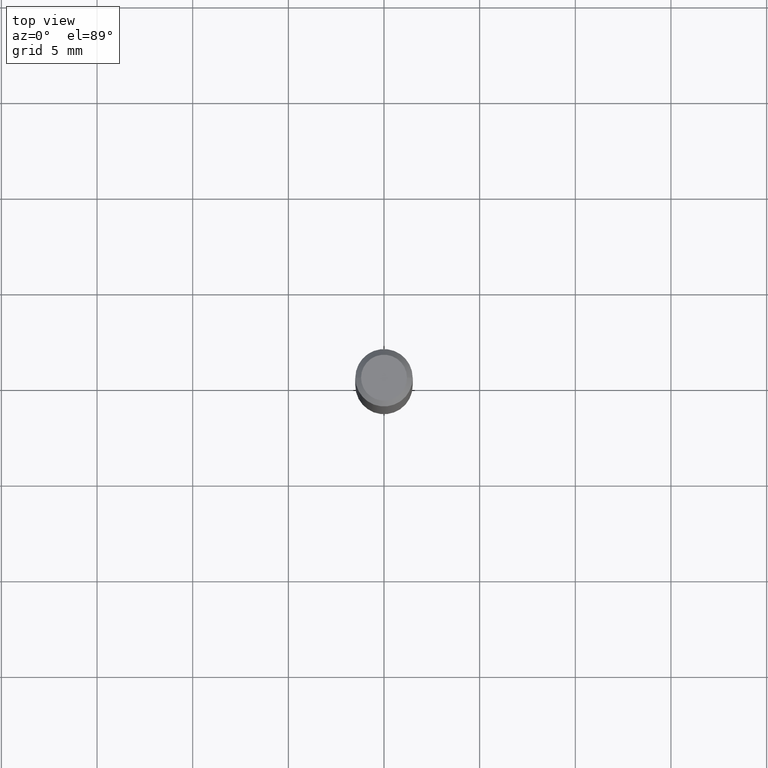
[diagram: clean part render]
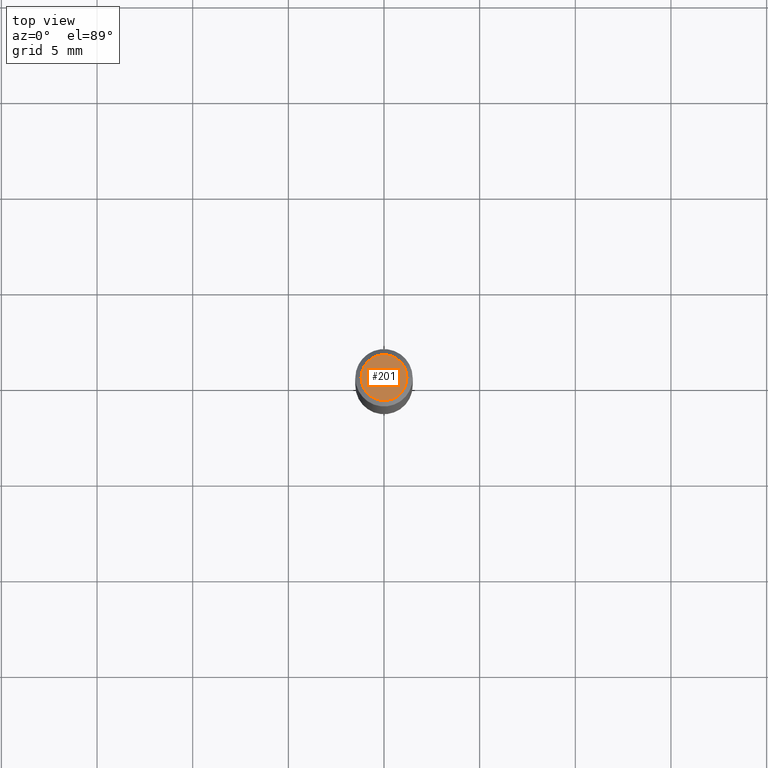
[diagram: same view with one face highlighted and labeled with its STEP entity id]
A machine part, top view. The second image highlights one B-rep face of the part: STEP entity #201.
In plain terms, the highlighted planar face has unit normal (0, -0, -1).
Its self-contained STEP definition (entity closure, byte-faithful):
#20 = CIRCLE ( 'NONE', #189, 0.04724000000000000421 ) ;
#39 = ORIENTED_EDGE ( 'NONE', *, *, #284, .T. ) ;
#53 = CIRCLE ( 'NONE', #402, 0.04724000000000000421 ) ;
#85 = CARTESIAN_POINT ( 'NONE',  ( 4.132873053354867254E-48, -5.900647395337818946E-34, -1.690012582823346072E-19 ) ) ;
#89 = CARTESIAN_POINT ( 'NONE',  ( 8.265746106709734507E-48, -1.180129479067563789E-33, -3.380025165646692144E-19 ) ) ;
#130 = DIRECTION ( 'NONE',  ( 1.000000000000000000, -6.982962677686266711E-15, 4.876185090822587894E-29 ) ) ;
#179 = EDGE_CURVE ( 'NONE', #266, #241, #20, .T. ) ;
#189 = AXIS2_PLACEMENT_3D ( 'NONE', #89, #466, #130 ) ;
#201 = ADVANCED_FACE ( 'NONE', ( #450 ), #415, .F. ) ;
#205 = DIRECTION ( 'NONE',  ( -1.000000000000000000, 6.982962677686265922E-15, -4.876176775795935793E-29 ) ) ;
#241 = VERTEX_POINT ( 'NONE', #376 ) ;
#266 = VERTEX_POINT ( 'NONE', #426 ) ;
#284 = EDGE_CURVE ( 'NONE', #241, #266, #53, .T. ) ;
#301 = DIRECTION ( 'NONE',  ( 1.000000000000000000, -6.982962677686266711E-15, 4.876185090822587894E-29 ) ) ;
#376 = CARTESIAN_POINT ( 'NONE',  ( 0.04724000000000000421, -3.852183633974369345E-16, -3.380025165621689721E-19 ) ) ;
#379 = ORIENTED_EDGE ( 'NONE', *, *, #179, .T. ) ;
#385 = AXIS2_PLACEMENT_3D ( 'NONE', #85, #418, #205 ) ;
#402 = AXIS2_PLACEMENT_3D ( 'NONE', #411, #464, #301 ) ;
#411 = CARTESIAN_POINT ( 'NONE',  ( 8.265746106709734507E-48, -1.180129479067563789E-33, -3.380025165646692144E-19 ) ) ;
#415 = PLANE ( 'NONE',  #385 ) ;
#418 = DIRECTION ( 'NONE',  ( 2.438088387897960049E-29, -3.491481338843145188E-15, -1.000000000000000000 ) ) ;
#426 = CARTESIAN_POINT ( 'NONE',  ( -0.04724000000000000421, 3.504923541997677355E-16, -3.380025165670481712E-19 ) ) ;
#450 = FACE_OUTER_BOUND ( 'NONE', #469, .T. ) ;
#464 = DIRECTION ( 'NONE',  ( -2.445468806185136597E-29, 3.491481338843145583E-15, 1.000000000000000000 ) ) ;
#466 = DIRECTION ( 'NONE',  ( -2.445468806185136597E-29, 3.491481338843145583E-15, 1.000000000000000000 ) ) ;
#469 = EDGE_LOOP ( 'NONE', ( #379, #39 ) ) ;